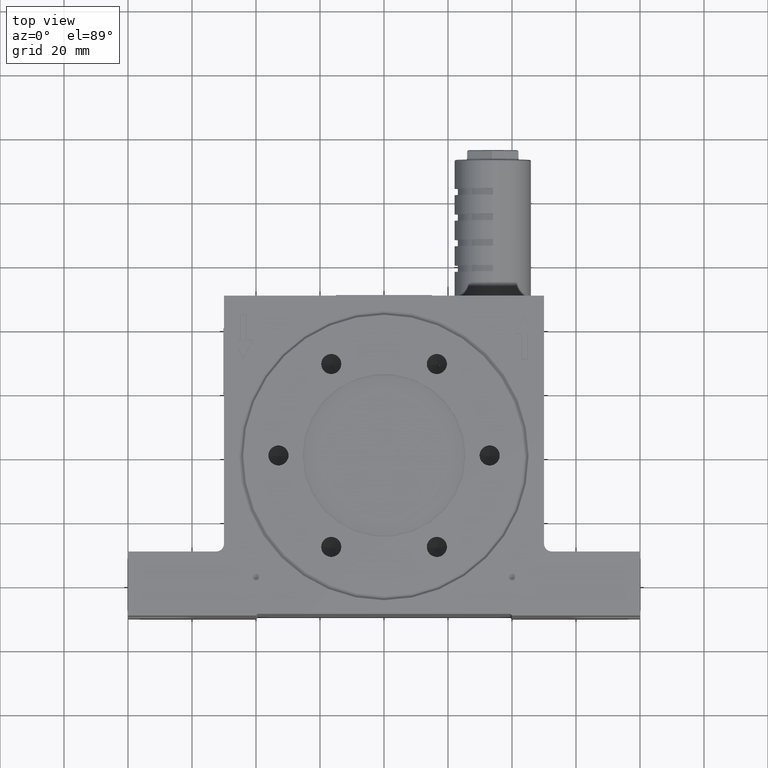
[diagram: clean part render]
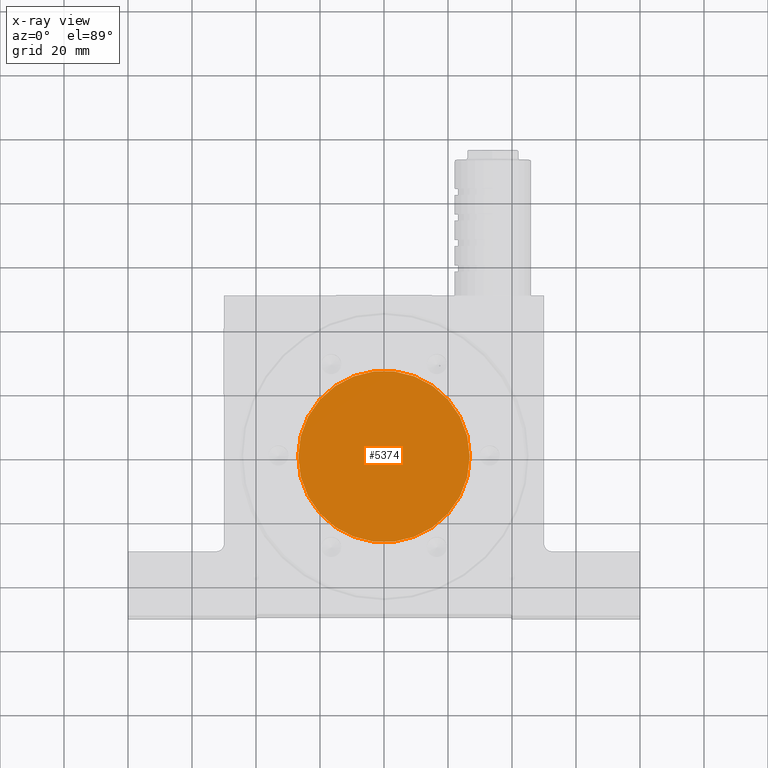
[diagram: x-ray — body ghosted, one internal face saturated and labeled with its STEP entity id]
A machine part, top view, then the same camera in x-ray: the body is ghosted and one INTERNAL B-rep face — a face not visible from any outside direction — is saturated and labeled: STEP entity #5374.
In plain terms, the highlighted planar face has unit normal (0, 0, 1).
Its self-contained STEP definition (entity closure, byte-faithful):
#38 = AXIS2_PLACEMENT_3D ( 'NONE', #17780, #10317, #6216 ) ;
#932 = DIRECTION ( 'NONE',  ( 1.000000000000000000, 0.0000000000000000000, 0.0000000000000000000 ) ) ;
#1170 = EDGE_CURVE ( 'NONE', #24945, #10257, #15667, .T. ) ;
#1516 = DIRECTION ( 'NONE',  ( 0.0000000000000000000, 0.0000000000000000000, 1.000000000000000000 ) ) ;
#2690 = DIRECTION ( 'NONE',  ( -0.0000000000000000000, -0.0000000000000000000, -1.000000000000000000 ) ) ;
#3213 = CARTESIAN_POINT ( 'NONE',  ( 0.0000000000000000000, 0.0000000000000000000, 17.50000000000000000 ) ) ;
#3430 = EDGE_LOOP ( 'NONE', ( #18450, #6078 ) ) ;
#3664 = AXIS2_PLACEMENT_3D ( 'NONE', #8544, #2690, #932 ) ;
#5374 = ADVANCED_FACE ( 'NONE', ( #23812 ), #24512, .T. ) ;
#6078 = ORIENTED_EDGE ( 'NONE', *, *, #1170, .F. ) ;
#6216 = DIRECTION ( 'NONE',  ( 1.000000000000000000, 0.0000000000000000000, 0.0000000000000000000 ) ) ;
#8142 = CARTESIAN_POINT ( 'NONE',  ( -26.80000000000000100, 0.0000000000000000000, 17.50000000000000000 ) ) ;
#8544 = CARTESIAN_POINT ( 'NONE',  ( 0.0000000000000000000, 0.0000000000000000000, 17.50000000000000000 ) ) ;
#10257 = VERTEX_POINT ( 'NONE', #8142 ) ;
#10317 = DIRECTION ( 'NONE',  ( -0.0000000000000000000, -0.0000000000000000000, -1.000000000000000000 ) ) ;
#11813 = AXIS2_PLACEMENT_3D ( 'NONE', #3213, #1516, #14946 ) ;
#14946 = DIRECTION ( 'NONE',  ( 1.000000000000000000, 0.0000000000000000000, 0.0000000000000000000 ) ) ;
#15411 = CARTESIAN_POINT ( 'NONE',  ( 26.80000000000000100, 3.282053421714906600E-015, 17.50000000000000000 ) ) ;
#15667 = CIRCLE ( 'NONE', #38, 26.80000000000000100 ) ;
#16892 = CIRCLE ( 'NONE', #3664, 26.80000000000000100 ) ;
#17780 = CARTESIAN_POINT ( 'NONE',  ( 0.0000000000000000000, 0.0000000000000000000, 17.50000000000000000 ) ) ;
#18450 = ORIENTED_EDGE ( 'NONE', *, *, #19988, .F. ) ;
#19988 = EDGE_CURVE ( 'NONE', #10257, #24945, #16892, .T. ) ;
#23812 = FACE_OUTER_BOUND ( 'NONE', #3430, .T. ) ;
#24512 = PLANE ( 'NONE',  #11813 ) ;
#24945 = VERTEX_POINT ( 'NONE', #15411 ) ;